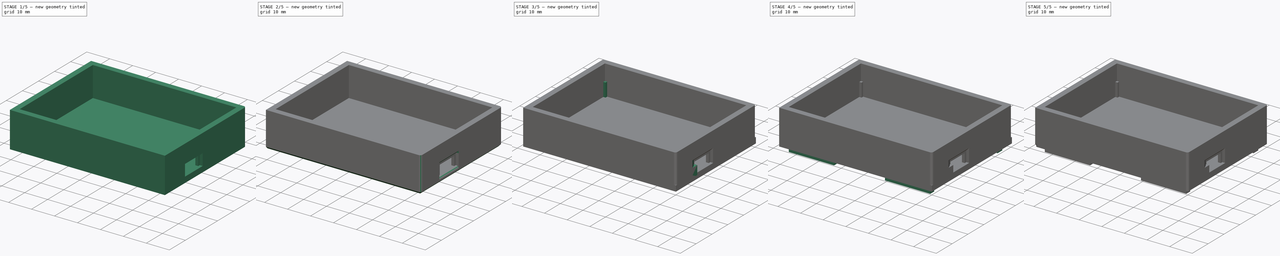
[diagram: build sequence overview — one tinted view per stage of 5, left to right]
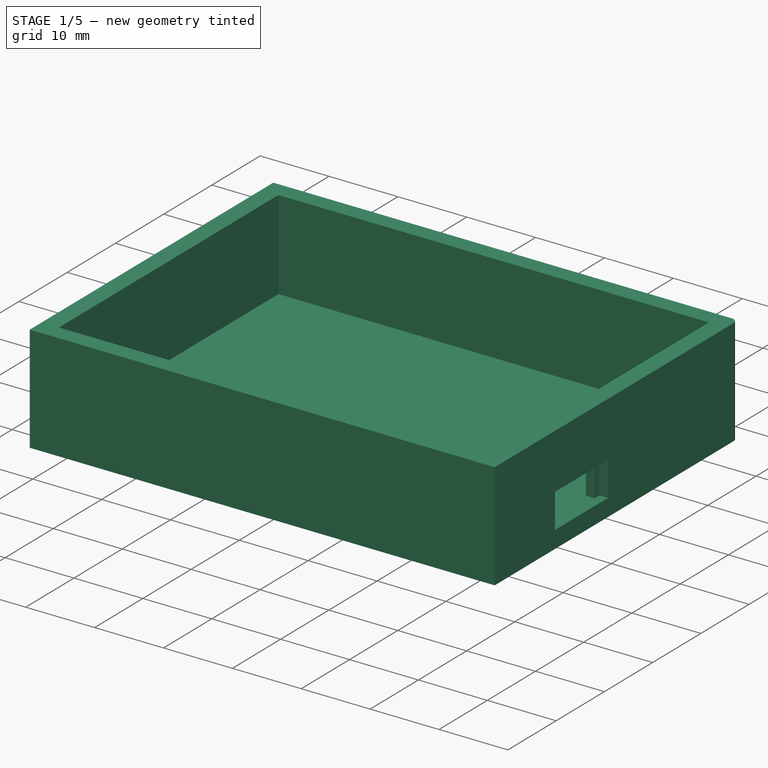
[diagram: stage 1 of 5 — iso view after this stage's code; geometry added in this stage tinted green]
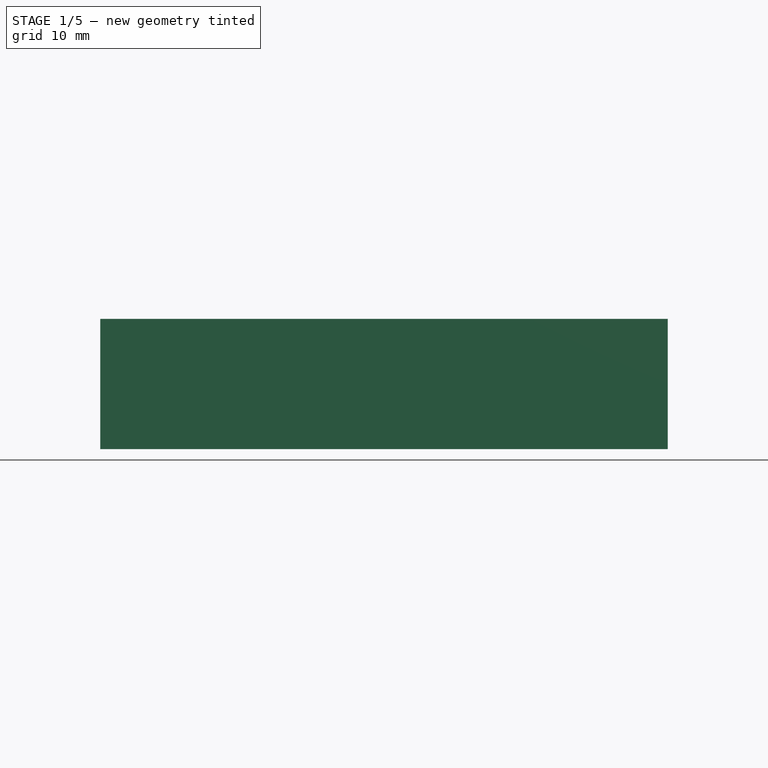
[diagram: stage 1 of 5 — front view after this stage's code; geometry added in this stage tinted green]
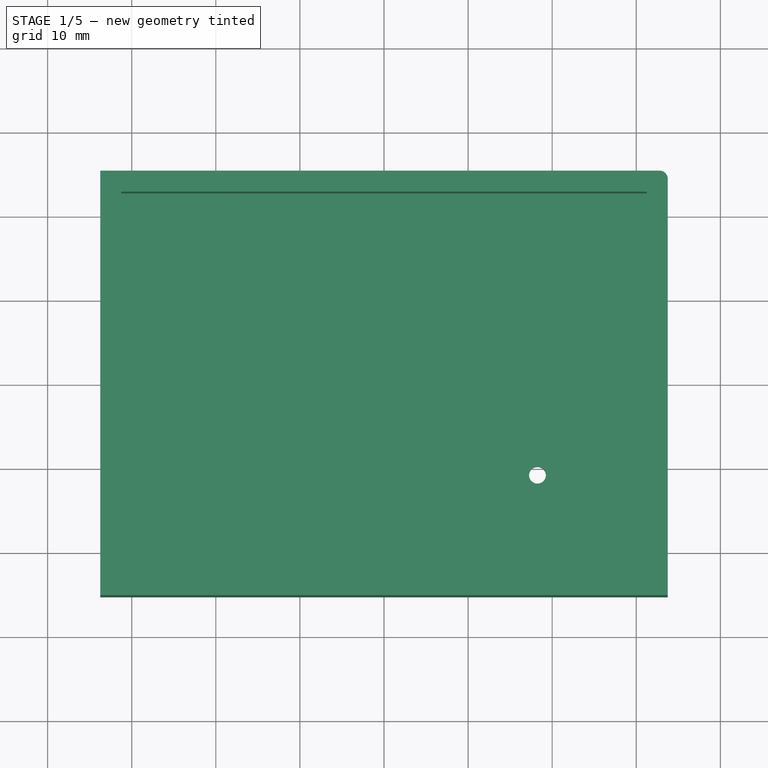
[diagram: stage 1 of 5 — top view after this stage's code; geometry added in this stage tinted green]
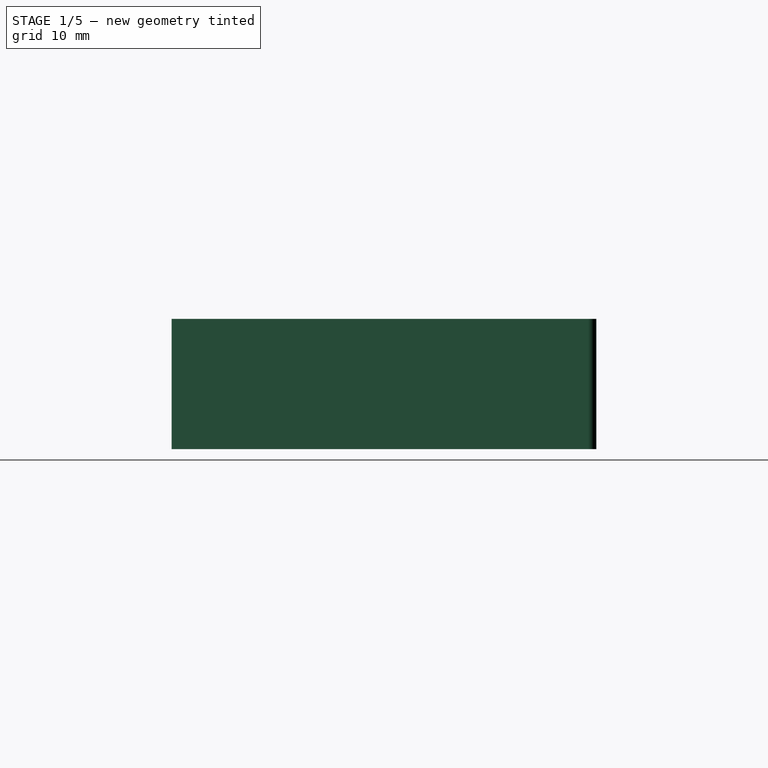
[diagram: stage 1 of 5 — right view after this stage's code; geometry added in this stage tinted green]
FCSTD DOCUMENT  (FreeCAD 0.20R)
Label: CurrentDiag
License: All rights reserved
LicenseURL: http://en.wikipedia.org/wiki/All_rights_reserved
objects: PartDesign::AdditiveBox×8, PartDesign::Chamfer×8, PartDesign::Fillet×8, Sketcher::SketchObject×3, PartDesign::Pad×2, PartDesign::SubtractiveBox×2, PartDesign::Body×2, PartDesign::Pocket×1, PartDesign::SubtractiveCylinder×1
note: 65 computed .brp shape members not serialized (recipe doc carries the construction recipe); baked Part::Feature solids carry a one-line shape summary decoded from their .brp

FEATURE [Sketcher::SketchObject] Sketch  label="Case"
  AttachmentOffset = pos=(0,0,-2.5) rot=(0,0,1;0rad)
  FullyConstrained = true
  MapMode = 5
  Placement = pos=(0,0,-2.5) rot=(0,0,1;0rad)
  Support = -> [XY_Plane]
  sketch-geometry (4):
    g0: LineSegment StartX=-33.75 StartY=25.25 StartZ=0 EndX=33.75 EndY=25.25 EndZ=0
    g1: LineSegment StartX=33.75 StartY=25.25 StartZ=0 EndX=33.75 EndY=-25.25 EndZ=0
    g2: LineSegment StartX=33.75 StartY=-25.25 StartZ=0 EndX=-33.75 EndY=-25.25 EndZ=0
    g3: LineSegment StartX=-33.75 StartY=-25.25 StartZ=0 EndX=-33.75 EndY=25.25 EndZ=0
  constraints (11):
    c: Coincident(g0,g1)
    c: Coincident(g1,g2)
    c: Coincident(g2,g3)
    c: Coincident(g3,g0)
    c: Horizontal(g0)
    c: Horizontal(g2)
    c: Vertical(g1)
    c: Vertical(g3)
    c: DistanceX(g0,g0) = 67.5
    c: DistanceY(g3,g3) = 50.5
    c: Symmetric(g0,g1,g-1)
FEATURE [PartDesign::Pad] Pad
  Direction = (0,0,1)
  Length = 15.5
  Length2 = 10
  Profile = -> Sketch
  ReferenceAxis = -> Sketch [N_Axis]
  Type = 0
FEATURE [Sketcher::SketchObject] Sketch001  label="Device"
  FullyConstrained = true
  MapMode = 5
  Support = -> [XY_Plane]
  sketch-geometry (4):
    g0: LineSegment StartX=-31.25 StartY=22.75 StartZ=0 EndX=31.25 EndY=22.75 EndZ=0
    g1: LineSegment StartX=31.25 StartY=22.75 StartZ=0 EndX=31.25 EndY=-22.75 EndZ=0
    g2: LineSegment StartX=31.25 StartY=-22.75 StartZ=0 EndX=-31.25 EndY=-22.75 EndZ=0
    g3: LineSegment StartX=-31.25 StartY=-22.75 StartZ=0 EndX=-31.25 EndY=22.75 EndZ=0
  constraints (11):
    c: Coincident(g0,g1)
    c: Coincident(g1,g2)
    c: Coincident(g2,g3)
    c: Coincident(g3,g0)
    c: Horizontal(g0)
    c: Horizontal(g2)
    c: Vertical(g1)
    c: Vertical(g3)
    c: DistanceX(g0,g0) = 62.5
    c: DistanceY(g3,g3) = 45.5
    c: Symmetric(g0,g1,g-1)
FEATURE [PartDesign::Pocket] Pocket
  BaseFeature = -> Pad
  Direction = (0,0,-1)
  Length = 5
  Length2 = 5
  Profile = -> Sketch001
  ReferenceAxis = -> Sketch001 [N_Axis]
  Reversed = true
  Type = 1
FEATURE [PartDesign::SubtractiveBox] Box004
  AttacherType = Attacher::AttachEngine3D
  AttachmentOffset = pos=(0,13.5,-6.5) rot=(0,0,1;0rad)
  BaseFeature = -> Pocket
  Height = 4
  Length = 10
  MapMode = 7
  Placement = pos=(33.75,-11.75,4) rot=(0,1,0;3.14159rad)
  Width = 9
FEATURE [PartDesign::SubtractiveBox] Box005
  AttacherType = Attacher::AttachEngine3D
  AttachmentOffset = pos=(0,12.5,-7.5) rot=(0,0,1;0rad)
  BaseFeature = -> Box004
  Height = 5
  Length = 1.25
  MapMode = 7
  Placement = pos=(33.75,-12.75,5) rot=(0,1,0;3.14159rad)
  Support = -> [Box004]
  Width = 11
FEATURE [PartDesign::Body] Body001
  Group = -> [Sketch002,Pad001,Box,Box001,Box002,Box003,Chamfer,Chamfer001,Chamfer002,Chamfer003,Fillet004,Fillet005,Fillet006,Fillet007]
  Origin = -> Origin001
  Placement = pos=(0,0,15.5) rot=(0,0,1;0rad)
  Tip = -> Fillet007
FEATURE [PartDesign::SubtractiveCylinder] Cylinder004
  Angle = 360
  AttacherType = Attacher::AttachEngine3D
  AttachmentOffset = pos=(15.5,14.5,-7) rot=(0,0,1;0rad)
  BaseFeature = -> Box005
  FirstAngle = 0
  Height = 10
  MapMode = 7
  Placement = pos=(18.25,-10.75,4.5) rot=(0,1,0;3.14159rad)
  Radius = 1
  SecondAngle = 0
  Support = -> [Box005]
FEATURE [PartDesign::Fillet] Fillet
  Base = -> Cylinder004 [Edge2]
  BaseFeature = -> Cylinder004
  Placement = pos=(18.25,-10.75,4.5) rot=(0,1,0;3.14159rad)
  Radius = 1
  SupportTransform = false
  UseAllEdges = false
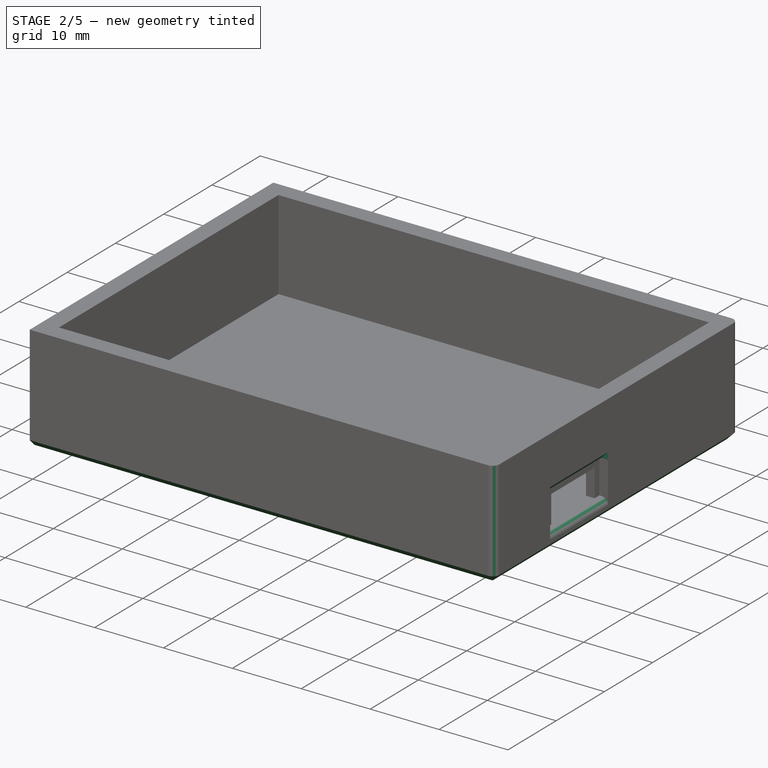
[diagram: stage 2 of 5 — iso view after this stage's code; geometry added in this stage tinted green]
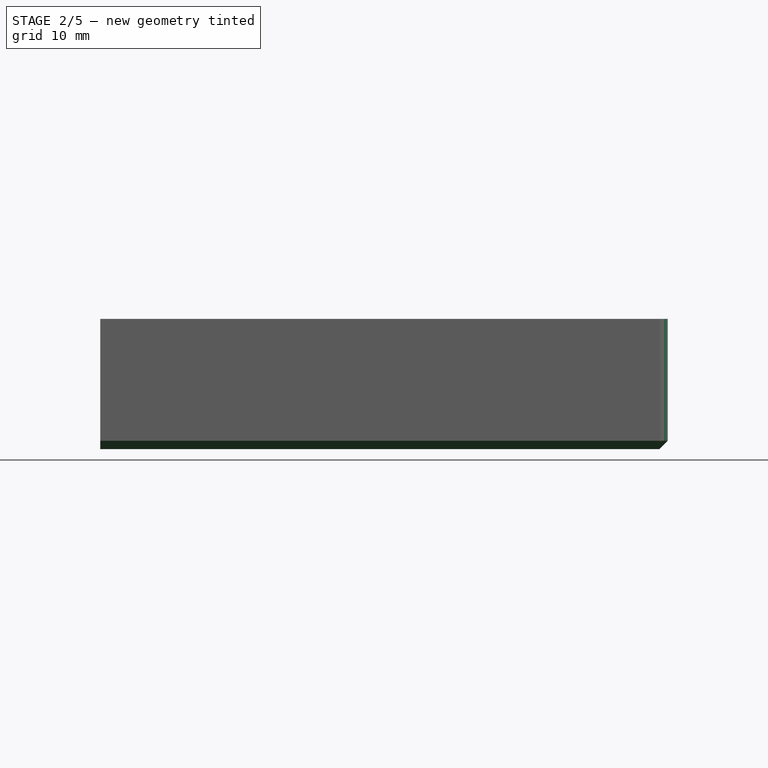
[diagram: stage 2 of 5 — front view after this stage's code; geometry added in this stage tinted green]
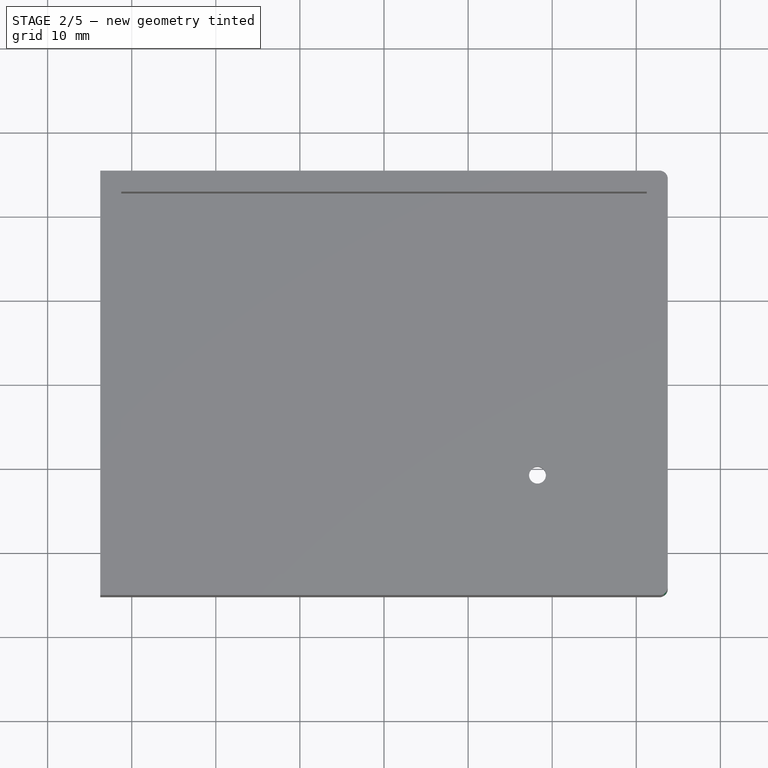
[diagram: stage 2 of 5 — top view after this stage's code; geometry added in this stage tinted green]
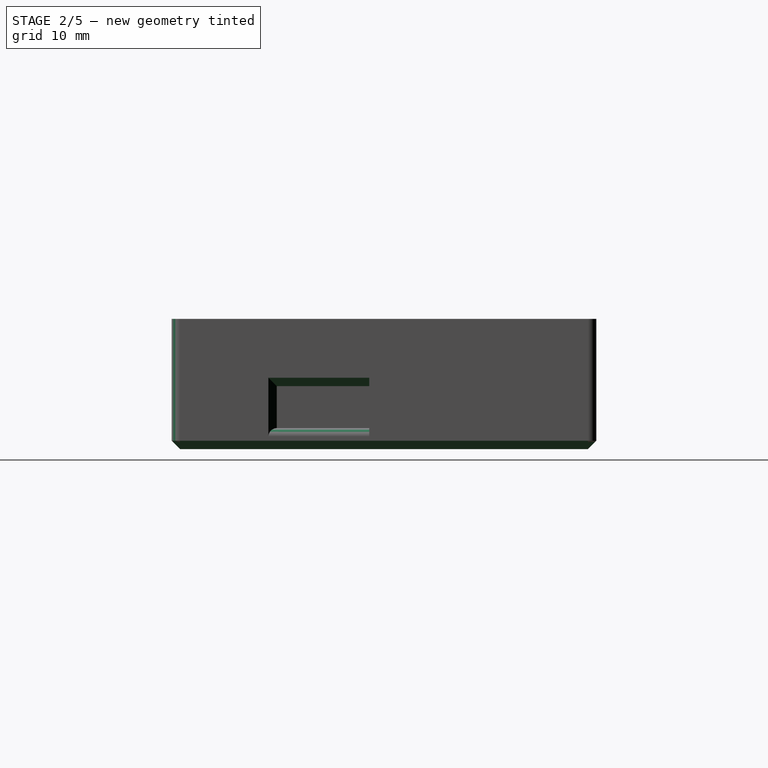
[diagram: stage 2 of 5 — right view after this stage's code; geometry added in this stage tinted green]
FEATURE [PartDesign::Fillet] Fillet008
  Base = -> Fillet [Edge20]
  BaseFeature = -> Fillet
  Placement = pos=(18.25,-10.75,4.5) rot=(0,1,0;3.14159rad)
  Radius = 1
  SupportTransform = false
  UseAllEdges = false
FEATURE [PartDesign::Fillet] Fillet009
  Base = -> Fillet008 [Edge19]
  BaseFeature = -> Fillet008
  Placement = pos=(18.25,-10.75,4.5) rot=(0,1,0;3.14159rad)
  Radius = 1
  SupportTransform = false
  UseAllEdges = false
FEATURE [PartDesign::Fillet] Fillet010
  Base = -> Fillet009 [Edge16]
  BaseFeature = -> Fillet009
  Placement = pos=(18.25,-10.75,4.5) rot=(0,1,0;3.14159rad)
  Radius = 1
  SupportTransform = false
  UseAllEdges = false
FEATURE [PartDesign::Chamfer] Chamfer004
  Angle = 45
  Base = -> Fillet010 [Edge27]
  BaseFeature = -> Fillet010
  ChamferType = 0
  FlipDirection = false
  Placement = pos=(18.25,-10.75,4.5) rot=(0,1,0;3.14159rad)
  Size = 1
  Size2 = 1
  SupportTransform = false
  UseAllEdges = false
FEATURE [PartDesign::Chamfer] Chamfer005
  Angle = 45
  Base = -> Chamfer004 [Edge6]
  BaseFeature = -> Chamfer004
  ChamferType = 0
  FlipDirection = false
  Placement = pos=(18.25,-10.75,4.5) rot=(0,1,0;3.14159rad)
  Size = 1
  Size2 = 1
  SupportTransform = false
  UseAllEdges = false
FEATURE [PartDesign::Chamfer] Chamfer006
  Angle = 45
  Base = -> Chamfer005 [Edge2]
  BaseFeature = -> Chamfer005
  ChamferType = 0
  FlipDirection = false
  Placement = pos=(18.25,-10.75,4.5) rot=(0,1,0;3.14159rad)
  Size = 1
  Size2 = 1
  SupportTransform = false
  UseAllEdges = false
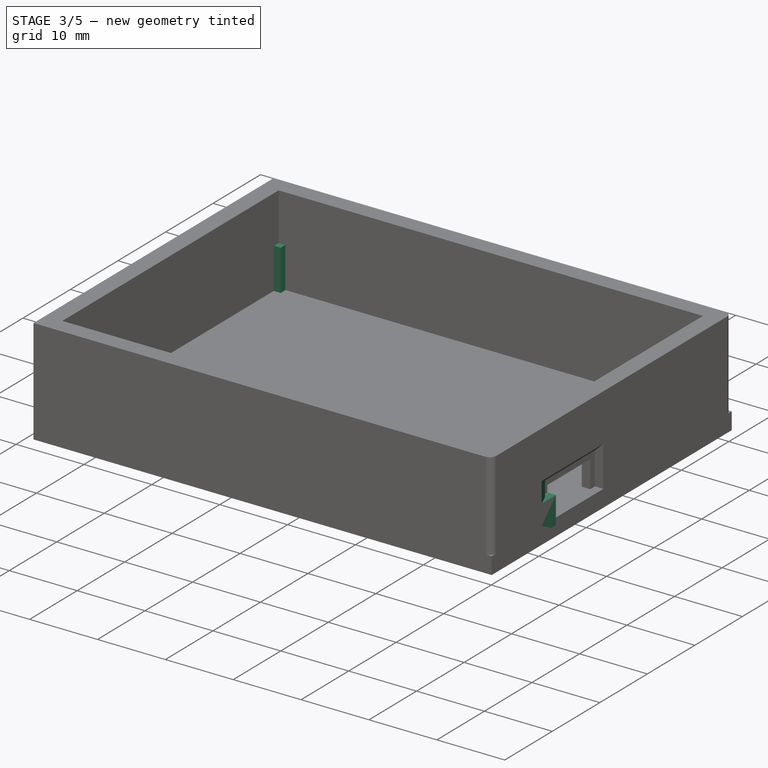
[diagram: stage 3 of 5 — iso view after this stage's code; geometry added in this stage tinted green]
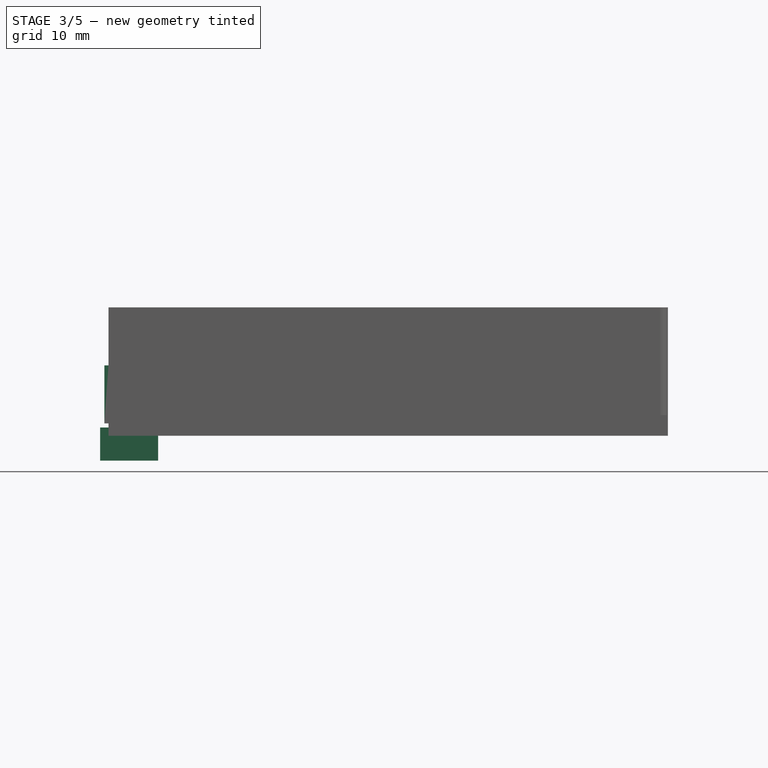
[diagram: stage 3 of 5 — front view after this stage's code; geometry added in this stage tinted green]
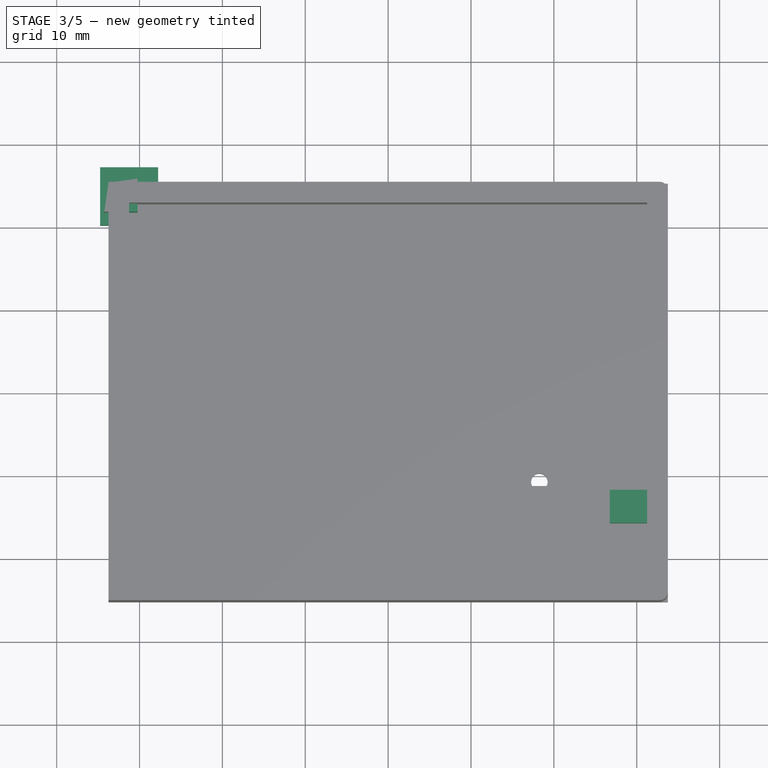
[diagram: stage 3 of 5 — top view after this stage's code; geometry added in this stage tinted green]
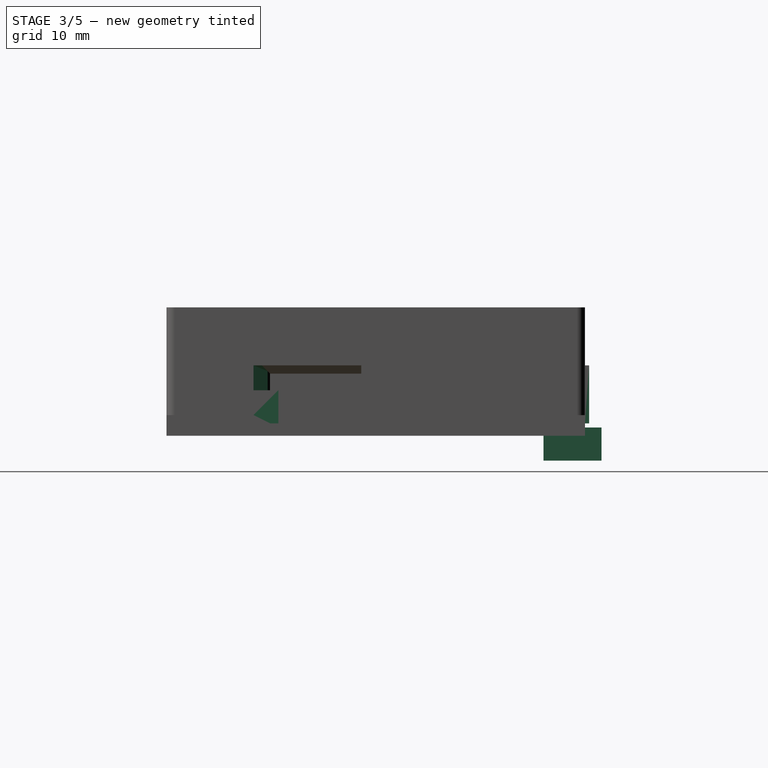
[diagram: stage 3 of 5 — right view after this stage's code; geometry added in this stage tinted green]
FEATURE [Sketcher::SketchObject] Sketch002
  FullyConstrained = true
  MapMode = 5
  Support = -> [XY_Plane001]
  sketch-geometry (8):
    g0: LineSegment StartX=-33.75 StartY=25.25 StartZ=0 EndX=33.75 EndY=25.25 EndZ=0
    g1: LineSegment StartX=33.75 StartY=25.25 StartZ=0 EndX=33.75 EndY=-25.25 EndZ=0
    g2: LineSegment StartX=33.75 StartY=-25.25 StartZ=0 EndX=-33.75 EndY=-25.25 EndZ=0
    g3: LineSegment StartX=-33.75 StartY=-25.25 StartZ=0 EndX=-33.75 EndY=25.25 EndZ=0
    g4: LineSegment StartX=-26.25 StartY=15.25 StartZ=0 EndX=26.25 EndY=15.25 EndZ=0
    g5: LineSegment StartX=26.25 StartY=15.25 StartZ=0 EndX=26.25 EndY=-11.25 EndZ=0
    g6: LineSegment StartX=26.25 StartY=-11.25 StartZ=0 EndX=-26.25 EndY=-11.25 EndZ=0
    g7: LineSegment StartX=-26.25 StartY=-11.25 StartZ=0 EndX=-26.25 EndY=15.25 EndZ=0
  constraints (23):
    c: Coincident(g0,g1)
    c: Coincident(g1,g2)
    c: Coincident(g2,g3)
    c: Coincident(g3,g0)
    c: Horizontal(g0)
    c: Horizontal(g2)
    c: Vertical(g1)
    c: Vertical(g3)
    c: DistanceX(g0,g0) = 67.5
    c: DistanceY(g3,g3) = 50.5
    c: Symmetric(g0,g1,g-1)
    c: Coincident(g4,g5)
    c: Coincident(g5,g6)
    c: Coincident(g6,g7)
    c: Coincident(g7,g4)
    c: Horizontal(g4)
    c: Horizontal(g6)
    c: Vertical(g5)
    c: Vertical(g7)
    c: DistanceY(g4,g0) = 10
    c: DistanceY(g1,g5) = 14
    c: DistanceX(g5,g1) = 7.5
    c: DistanceX(g2,g6) = 7.5
FEATURE [PartDesign::Pad] Pad001
  Direction = (0,0,1)
  Length = 2.5
  Length2 = 10
  Profile = -> Sketch002
  ReferenceAxis = -> Sketch002 [N_Axis]
  Reversed = true
  Type = 0
FEATURE [PartDesign::Chamfer] Chamfer007
  Angle = 45
  Base = -> Chamfer006 [Edge2]
  BaseFeature = -> Chamfer006
  ChamferType = 0
  FlipDirection = false
  Placement = pos=(18.25,-10.75,4.5) rot=(0,1,0;3.14159rad)
  Size = 1
  Size2 = 1
  SupportTransform = false
  UseAllEdges = false
FEATURE [PartDesign::AdditiveBox] Box006
  AttacherType = Attacher::AttachEngine3D
  AttachmentOffset = pos=(-3,-1,-6) rot=(0,0,1;0rad)
  BaseFeature = -> Chamfer007
  Height = 7
  Length = 4
  MapMode = 7
  Placement = pos=(-28.25,-23.75,6) rot=(0,1,0;3.14159rad)
  Support = -> [Chamfer007]
  Width = 4
FEATURE [PartDesign::AdditiveBox] Box007
  AttacherType = Attacher::AttachEngine3D
  AttachmentOffset = pos=(-1,-1,-6) rot=(0,0,1;0rad)
  BaseFeature = -> Box006
  Height = 7
  Length = 4
  MapMode = 7
  Placement = pos=(32.25,-23.75,6) rot=(0,1,0;3.14159rad)
  Support = -> [Box006]
  Width = 4
FEATURE [PartDesign::AdditiveBox] Box008
  AttacherType = Attacher::AttachEngine3D
  AttachmentOffset = pos=(-3,-3,-6) rot=(0,0,1;0rad)
  BaseFeature = -> Box007
  Height = 7
  Length = 4
  MapMode = 7
  Placement = pos=(-28.25,19.75,6) rot=(0,1,0;3.14159rad)
  Support = -> [Box007]
  Width = 4
FEATURE [PartDesign::AdditiveBox] Box009
  AttacherType = Attacher::AttachEngine3D
  AttachmentOffset = pos=(-1,-3,-6) rot=(0,0,1;0rad)
  BaseFeature = -> Box008
  Height = 7
  Length = 4
  MapMode = 7
  Placement = pos=(32.25,19.75,6) rot=(0,1,0;3.14159rad)
  Support = -> [Box008]
  Width = 4
FEATURE [PartDesign::Body] Body
  Group = -> [Sketch,Pad,Sketch001,Pocket,Box004,Box005,Cylinder004,Fillet,Fillet008,Fillet009,Fillet010,Chamfer004,Chamfer005,Chamfer006,Chamfer007,Box006,Box007,Box008,Box009]
  Origin = -> Origin
  Tip = -> Box009
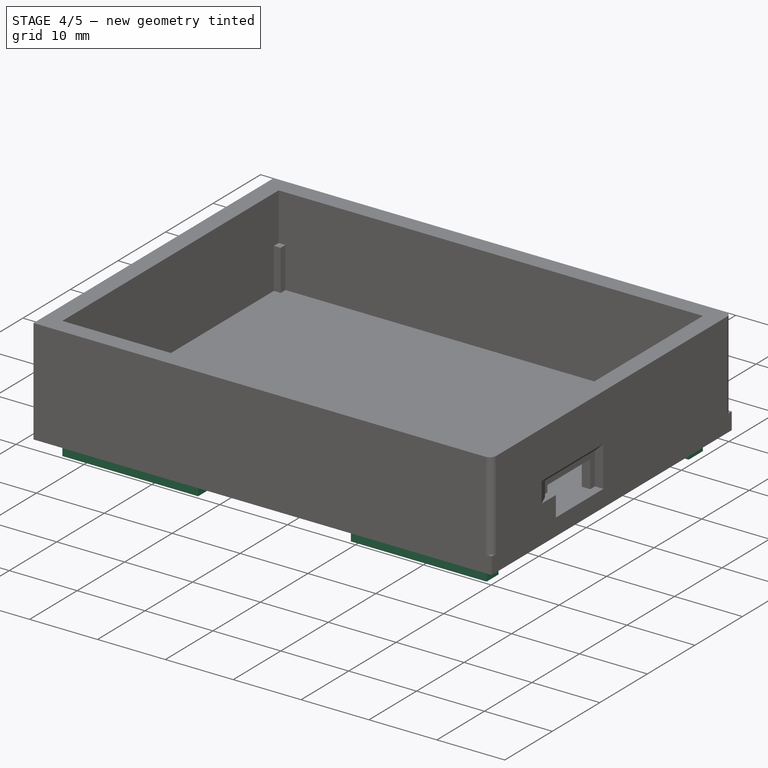
[diagram: stage 4 of 5 — iso view after this stage's code; geometry added in this stage tinted green]
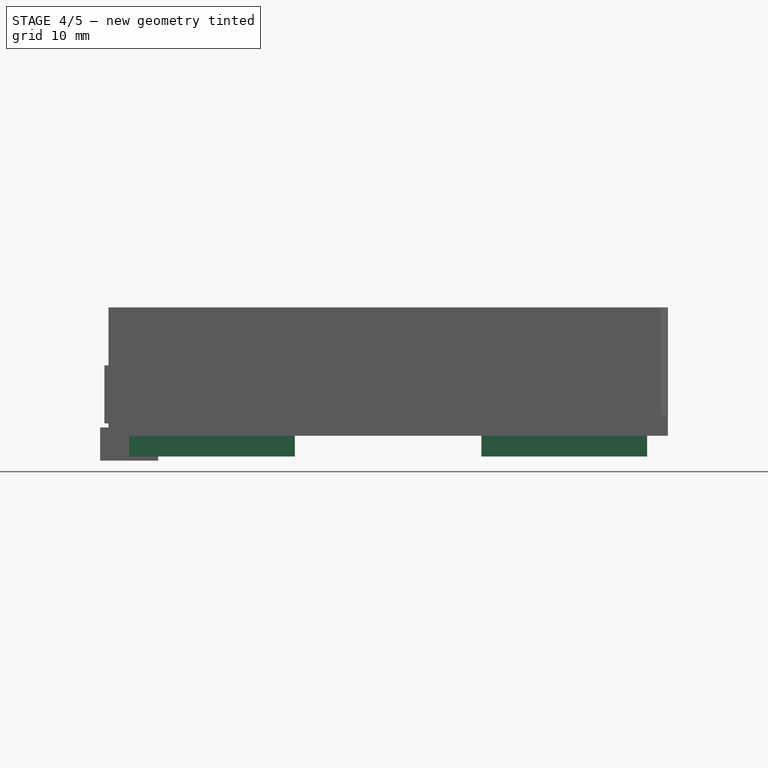
[diagram: stage 4 of 5 — front view after this stage's code; geometry added in this stage tinted green]
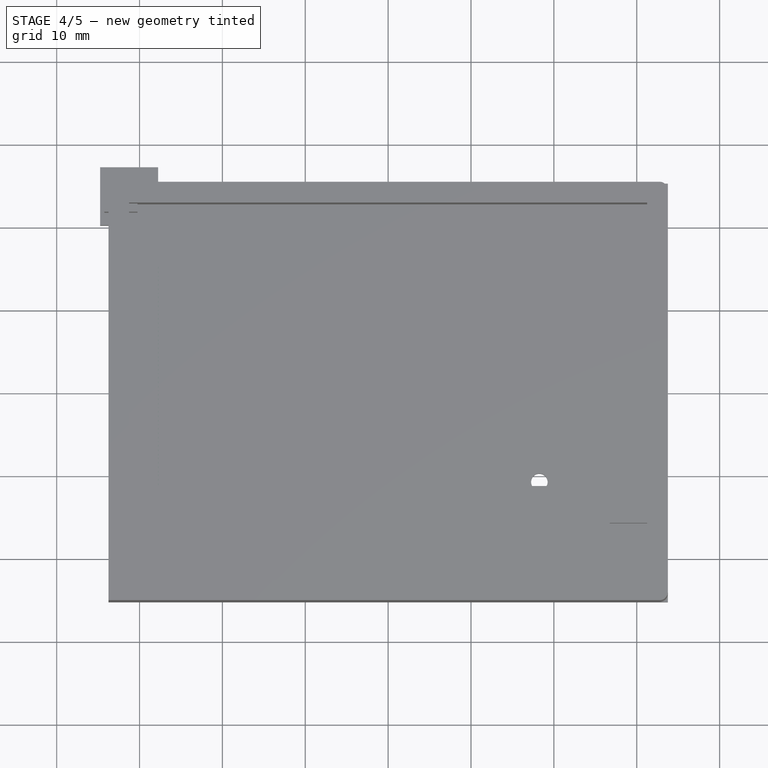
[diagram: stage 4 of 5 — top view after this stage's code; geometry added in this stage tinted green]
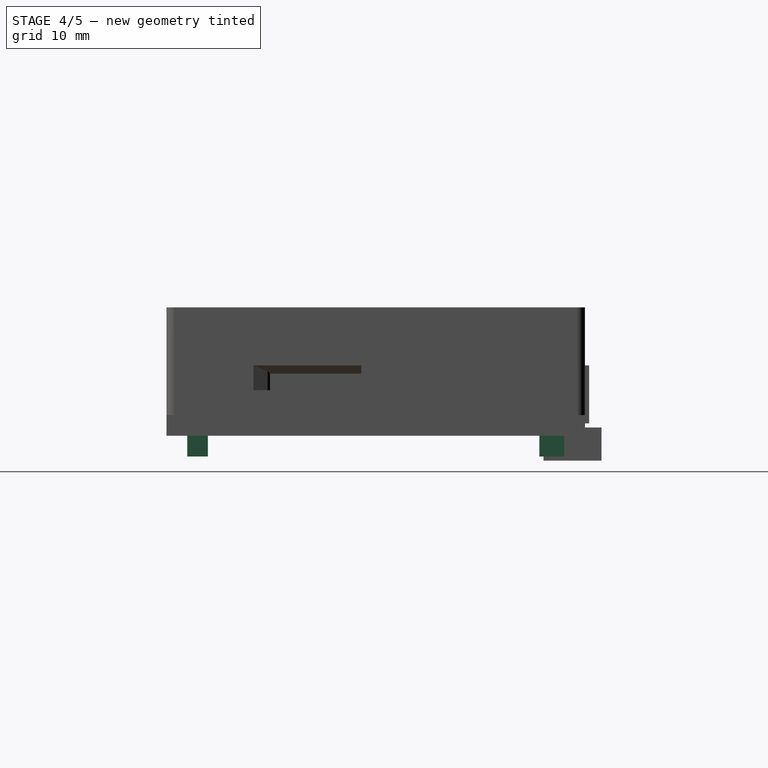
[diagram: stage 4 of 5 — right view after this stage's code; geometry added in this stage tinted green]
FEATURE [PartDesign::AdditiveBox] Box
  AttacherType = Attacher::AttachEngine3D
  AttachmentOffset = pos=(2.5,2.5,-5) rot=(0,0,1;0rad)
  BaseFeature = -> Pad001
  Height = 4
  Length = 20
  MapMode = 7
  Placement = pos=(-31.25,-22.75,-5) rot=(0,0,1;0rad)
  Support = -> [Pad001]
  Width = 2.5
FEATURE [PartDesign::AdditiveBox] Box001
  AttacherType = Attacher::AttachEngine3D
  AttachmentOffset = pos=(-22.5,2.5,-5) rot=(0,0,1;0rad)
  BaseFeature = -> Box
  Height = 4
  Length = 20
  MapMode = 7
  Placement = pos=(11.25,-22.75,-5) rot=(0,0,1;0rad)
  Support = -> [Box]
  Width = 2.5
FEATURE [PartDesign::AdditiveBox] Box002
  AttacherType = Attacher::AttachEngine3D
  AttachmentOffset = pos=(2.5,-5.5,-5) rot=(0,0,1;0rad)
  BaseFeature = -> Box001
  Height = 4
  Length = 20
  MapMode = 7
  Placement = pos=(-31.25,19.75,-5) rot=(0,0,1;0rad)
  Support = -> [Box001]
  Width = 3
FEATURE [PartDesign::AdditiveBox] Box003
  AttacherType = Attacher::AttachEngine3D
  AttachmentOffset = pos=(-22.5,-5.5,-5) rot=(0,0,1;0rad)
  BaseFeature = -> Box002
  Height = 4
  Length = 20
  MapMode = 7
  Placement = pos=(11.25,19.75,-5) rot=(0,0,1;0rad)
  Support = -> [Box002]
  Width = 3
FEATURE [PartDesign::Chamfer] Chamfer
  Angle = 45
  Base = -> Box003 [Edge15]
  BaseFeature = -> Box003
  ChamferType = 0
  FlipDirection = false
  Placement = pos=(11.25,19.75,-5) rot=(0,0,1;0rad)
  Size = 1.5
  Size2 = 1
  SupportTransform = false
  UseAllEdges = false
FEATURE [PartDesign::Chamfer] Chamfer001
  Angle = 45
  Base = -> Chamfer [Edge6]
  BaseFeature = -> Chamfer
  ChamferType = 0
  FlipDirection = false
  Placement = pos=(11.25,19.75,-5) rot=(0,0,1;0rad)
  Size = 1.5
  Size2 = 1
  SupportTransform = false
  UseAllEdges = false
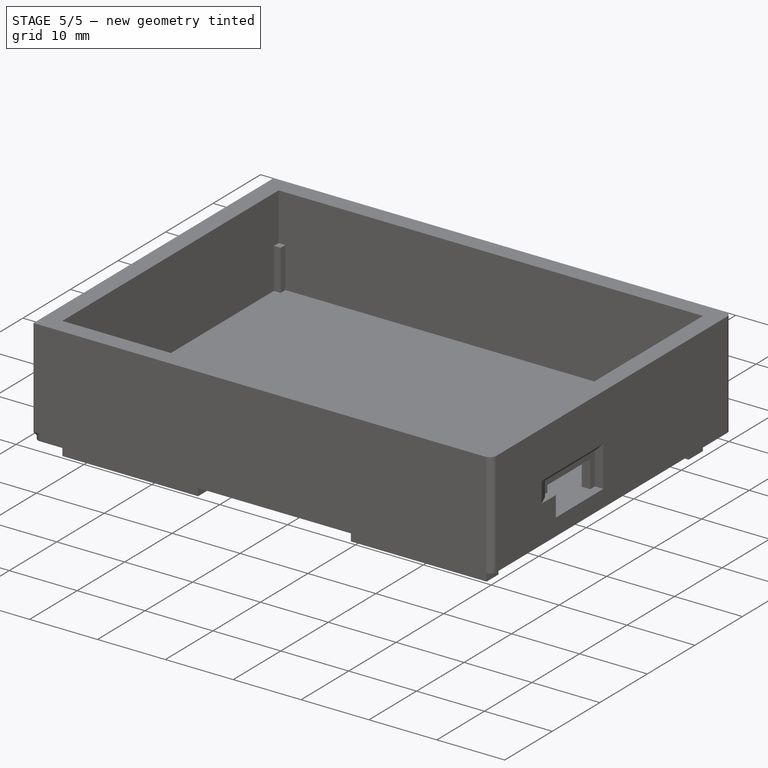
[diagram: stage 5 of 5 — iso view after this stage's code; geometry added in this stage tinted green]
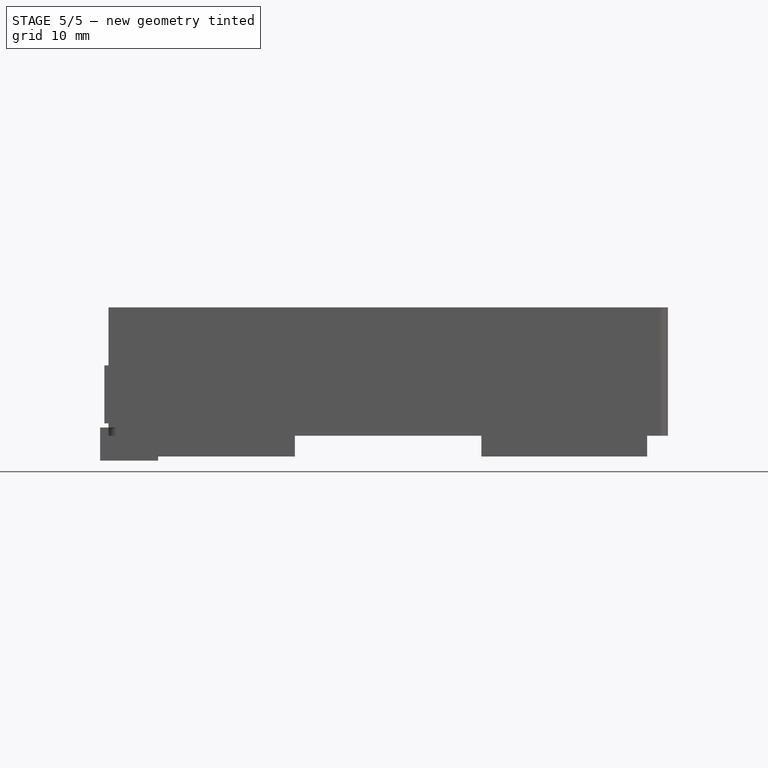
[diagram: stage 5 of 5 — front view after this stage's code; geometry added in this stage tinted green]
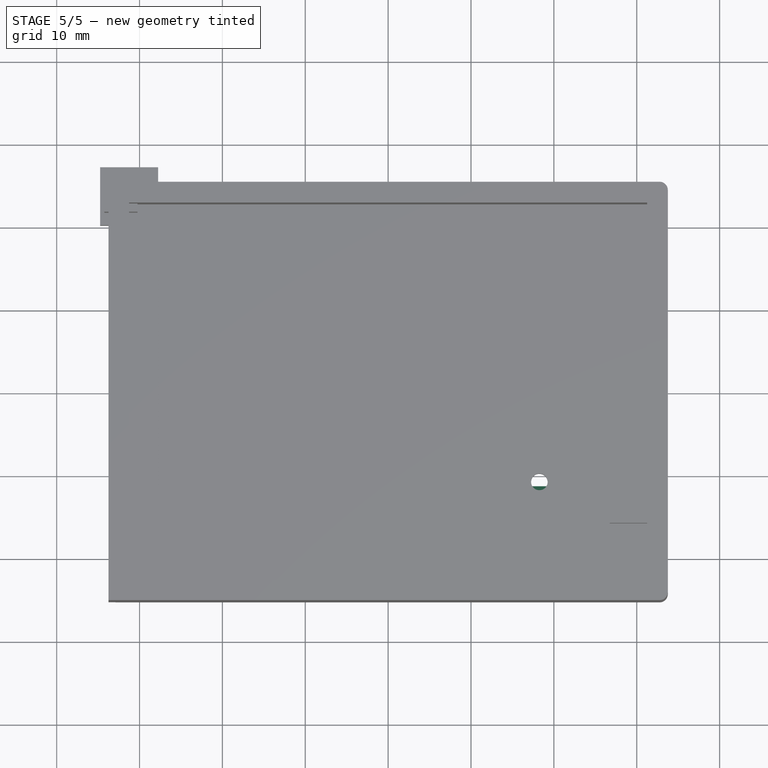
[diagram: stage 5 of 5 — top view after this stage's code; geometry added in this stage tinted green]
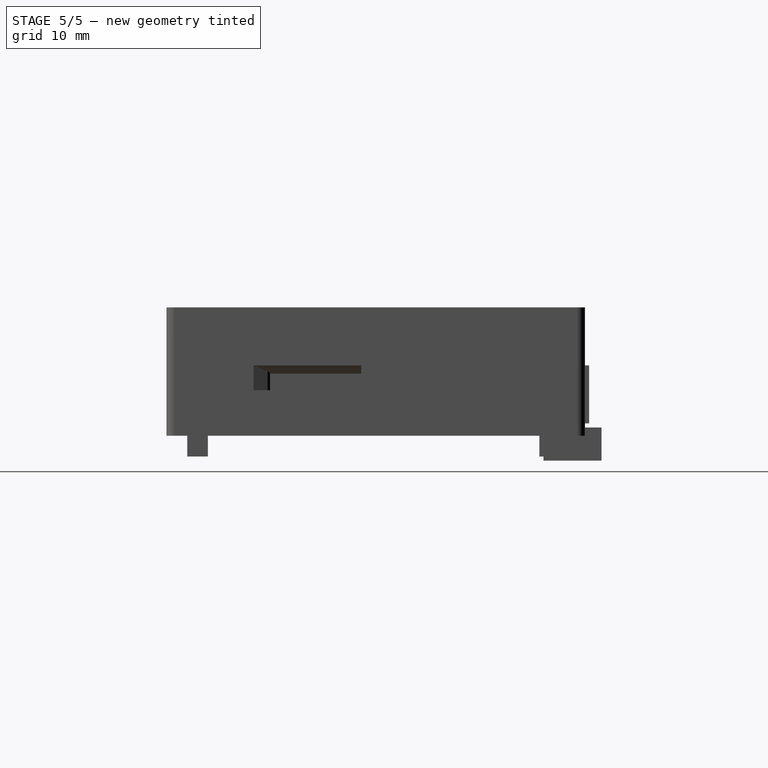
[diagram: stage 5 of 5 — right view after this stage's code; geometry added in this stage tinted green]
FEATURE [PartDesign::Chamfer] Chamfer002
  Angle = 45
  Base = -> Chamfer001 [Edge8]
  BaseFeature = -> Chamfer001
  ChamferType = 0
  FlipDirection = false
  Placement = pos=(11.25,19.75,-5) rot=(0,0,1;0rad)
  Size = 1.5
  Size2 = 1
  SupportTransform = false
  UseAllEdges = false
FEATURE [PartDesign::Chamfer] Chamfer003
  Angle = 45
  Base = -> Chamfer002 [Edge9]
  BaseFeature = -> Chamfer002
  ChamferType = 0
  FlipDirection = false
  Placement = pos=(11.25,19.75,-5) rot=(0,0,1;0rad)
  Size = 1.5
  Size2 = 1
  SupportTransform = false
  UseAllEdges = false
FEATURE [PartDesign::Fillet] Fillet004
  Base = -> Chamfer003 [Edge30]
  BaseFeature = -> Chamfer003
  Placement = pos=(11.25,19.75,-5) rot=(0,0,1;0rad)
  Radius = 1
  SupportTransform = false
  UseAllEdges = false
FEATURE [PartDesign::Fillet] Fillet005
  Base = -> Fillet004 [Edge25]
  BaseFeature = -> Fillet004
  Placement = pos=(11.25,19.75,-5) rot=(0,0,1;0rad)
  Radius = 1
  SupportTransform = false
  UseAllEdges = false
FEATURE [PartDesign::Fillet] Fillet006
  Base = -> Fillet005 [Edge28]
  BaseFeature = -> Fillet005
  Placement = pos=(11.25,19.75,-5) rot=(0,0,1;0rad)
  Radius = 1
  SupportTransform = false
  UseAllEdges = false
FEATURE [PartDesign::Fillet] Fillet007
  Base = -> Fillet006 [Edge27]
  BaseFeature = -> Fillet006
  Placement = pos=(11.25,19.75,-5) rot=(0,0,1;0rad)
  Radius = 1
  SupportTransform = false
  UseAllEdges = false
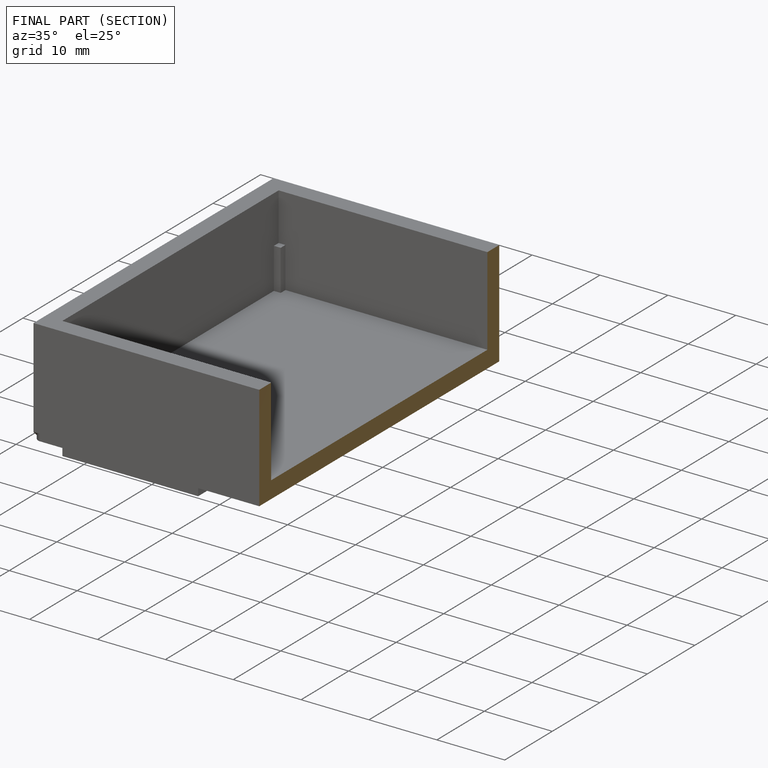
[diagram: finished part — half-section view (interior)]
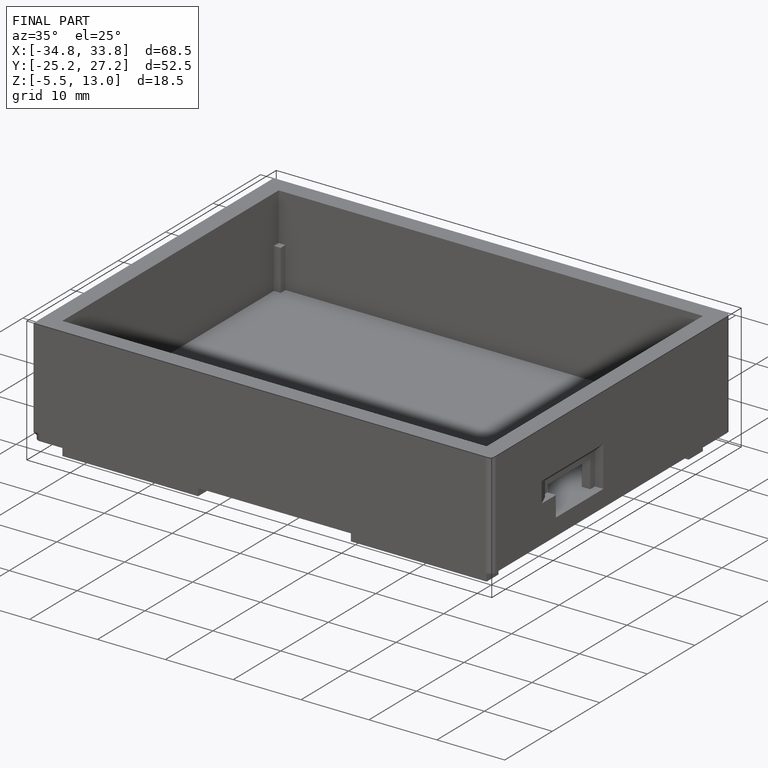
[diagram: finished part — iso view with bounding-box wireframe]
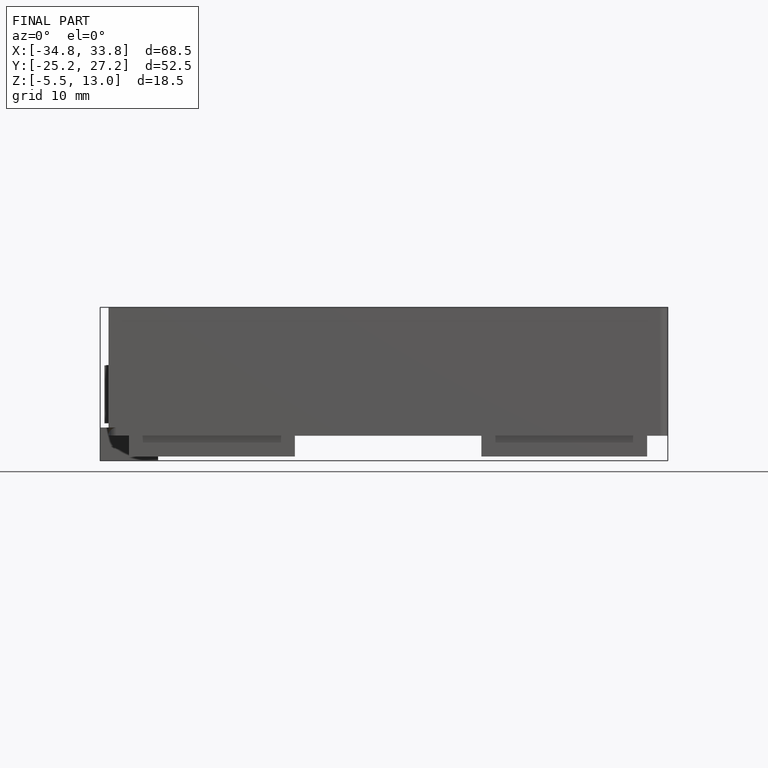
[diagram: finished part — front view with bounding-box wireframe]
